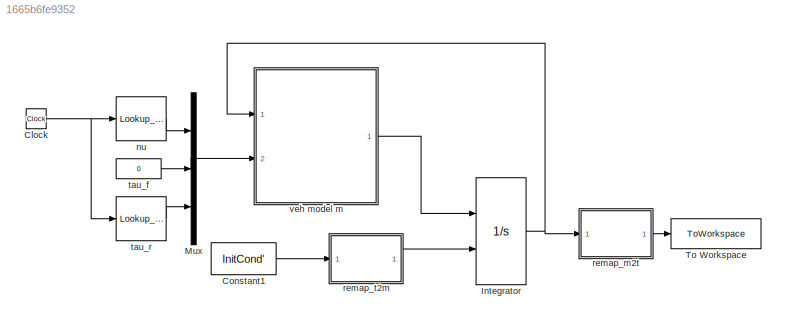
MODEL slx_1665b6fe9352
KIND model
CONFIG AbsTol = auto
CONFIG EnableMultiTasking = off
CONFIG FixedStep = auto
CONFIG MaxStep = auto
CONFIG MinStep = auto
CONFIG RelTol = 1e-3
CONFIG SampleTimeConstraint = Unconstrained
CONFIG SolverName = ode45
CONFIG StartTime = 0.0
CONFIG StopTime = 3
WORKSPACE source: mxarray member
WORKSPACE InitCond = [10 0 0 0 0 0 30 30 0]
WORKSPACE nuDataPoints = [0.1 0.1 0.1 0.1 0.1 0.1 0.1 0.1 0.1 0.1 0.1 0.1 ... (300 elements, 1x300)]
WORKSPACE tauDataPoints = [700 700 700 700 700 700 700 700 700 700 700 700 ... (300 elements, 1x300)]
WORKSPACE timeBreakPoints = [0 0.01 0.02 0.03 0.04 0.05 0.06 0.07 0.08 0.09 0.1 0.11 ... (300 elements, 1x300)]
BLOCK [Clock] Clock
BLOCK [Constant] Constant1
  Value = InitCond'
BLOCK [Integrator] Integrator
  InitialCondition = [10,0,0,0,30,30,0,0,0]
  InitialConditionSource = external
  Ports = [2, 1]
BLOCK [Mux] Mux
  DisplayOption = bar
  Inputs = 3
  Ports = [3, 1]
BLOCK [ToWorkspace] To Workspace
  FixptAsFi = on
  MaxDataPoints = inf
  Ports = [1]
  SampleTime = -1
  Save2DSignal = 2-D array (concatenate along first dimension)
  VariableName = states
BLOCK [Lookup_n-D] nu
  BreakpointsForDimension1 = timeBreakPoints
  InputPortMap = u0
  InternalRulePriority = Speed
  NumberOfTableDimensions = 1
  Ports = [1, 1]
  RndMeth = Simplest
  Table = nuDataPoints
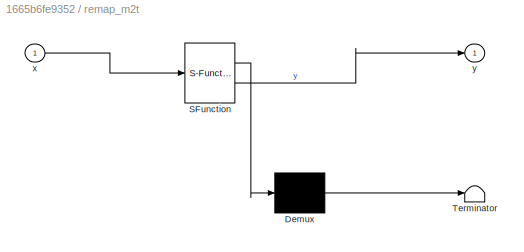
BLOCK [SubSystem] remap_m2t
  ErrorFcn = Stateflow.Translate.translate
  PermitHierarchicalResolution = ExplicitOnly
  Ports = [1, 1]
  RequestExecContextInheritance = off
  SFBlockType = MATLAB Function
  TreatAsAtomicUnit = on
BLOCK [Demux] remap_m2t/ Demux 
  Outputs = 1
  Ports = [1, 1]
BLOCK [S-Function] remap_m2t/ SFunction 
  EnableBusSupport = on
  FunctionName = sf_sfun
  PortCounts = [1 2]
  Ports = [1, 2]
  SFcnIsStateOwnerBlock = off
  SFunctionDeploymentMode = off
  Tag = Stateflow S-Function 3
BLOCK [Terminator] remap_m2t/ Terminator 
BLOCK [Inport] remap_m2t/x
BLOCK [Outport] remap_m2t/y
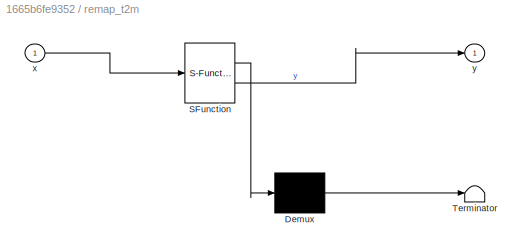
BLOCK [SubSystem] remap_t2m
  ErrorFcn = Stateflow.Translate.translate
  PermitHierarchicalResolution = ExplicitOnly
  Ports = [1, 1]
  RequestExecContextInheritance = off
  SFBlockType = MATLAB Function
  TreatAsAtomicUnit = on
BLOCK [Demux] remap_t2m/ Demux 
  Outputs = 1
  Ports = [1, 1]
BLOCK [S-Function] remap_t2m/ SFunction 
  EnableBusSupport = on
  FunctionName = sf_sfun
  PortCounts = [1 2]
  Ports = [1, 2]
  SFcnIsStateOwnerBlock = off
  SFunctionDeploymentMode = off
  Tag = Stateflow S-Function 1
BLOCK [Terminator] remap_t2m/ Terminator 
BLOCK [Inport] remap_t2m/x
BLOCK [Outport] remap_t2m/y
BLOCK [Constant] tau_f
  Value = 0
BLOCK [Lookup_n-D] tau_r
  BreakpointsForDimension1 = timeBreakPoints
  InputPortMap = u0
  InternalRulePriority = Speed
  NumberOfTableDimensions = 1
  Ports = [1, 1]
  RndMeth = Simplest
  Table = tauDataPoints
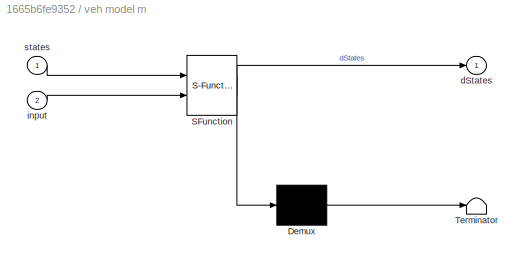
BLOCK [SubSystem] veh model m
  ErrorFcn = Stateflow.Translate.translate
  PermitHierarchicalResolution = ExplicitOnly
  Ports = [2, 1]
  RequestExecContextInheritance = off
  SFBlockType = MATLAB Function
  TreatAsAtomicUnit = on
BLOCK [Demux] veh model m/ Demux 
  Outputs = 1
  Ports = [1, 1]
BLOCK [S-Function] veh model m/ SFunction 
  EnableBusSupport = on
  FunctionName = sf_sfun
  PortCounts = [2 2]
  Ports = [2, 2]
  SFcnIsStateOwnerBlock = off
  SFunctionDeploymentMode = off
  Tag = Stateflow S-Function 2
BLOCK [Terminator] veh model m/ Terminator 
BLOCK [Outport] veh model m/dStates
BLOCK [Inport] veh model m/input
  Port = 2
BLOCK [Inport] veh model m/states
NET Clock:1 -> nu:1, tau_r:1
LINE Constant1:1 -> remap_t2m:1
NET Integrator:1 -> remap_m2t:1, veh model m:1
LINE Mux:1 -> veh model m:2
LINE nu:1 -> Mux:1
LINE remap_m2t:1 -> To Workspace:1
LINE remap_t2m:1 -> Integrator:2
LINE tau_f:1 -> Mux:2
LINE tau_r:1 -> Mux:3
LINE veh model m:1 -> Integrator:1
note: NET lines group one-source signal fan-out (src -> all destinations, sorted); 1:1 wires keep LINE
CHART veh model m states=1 transitions=1
  STATE_LABEL 'eML_blk_kernel()'
  STATE_LABEL 'SCRIPT:\nfunction dStates = fcn(states, input)\n\ndStates = VehicleModelDifferentiable(states, input);\n'
CHART remap_m2t states=1 transitions=1
  STATE_LABEL 'eML_blk_kernel()'
  STATE_LABEL 'SCRIPT:\nfunction y = fcn(x)\n% remap from vehModel_t input order to vehModel_m input order\ny = vertcat(x(1), x(2), x(7), x(8), x(4), x(3), x(5), x(6), x(9));\n\nend'
CHART remap_t2m states=1 transitions=1
  STATE_LABEL 'eML_blk_kernel()'
  STATE_LABEL 'SCRIPT:\nfunction y = fcn(x)\n% remap from vehModel_t input order to vehModel_m input order\ny = vertcat(x(1), x(2), x(6), x(5), x(7), x(8), x(3), x(4), x(9));\n\nend'
CHART  states=0 transitions=0
CHART  states=0 transitions=0
CHART  states=0 transitions=0
